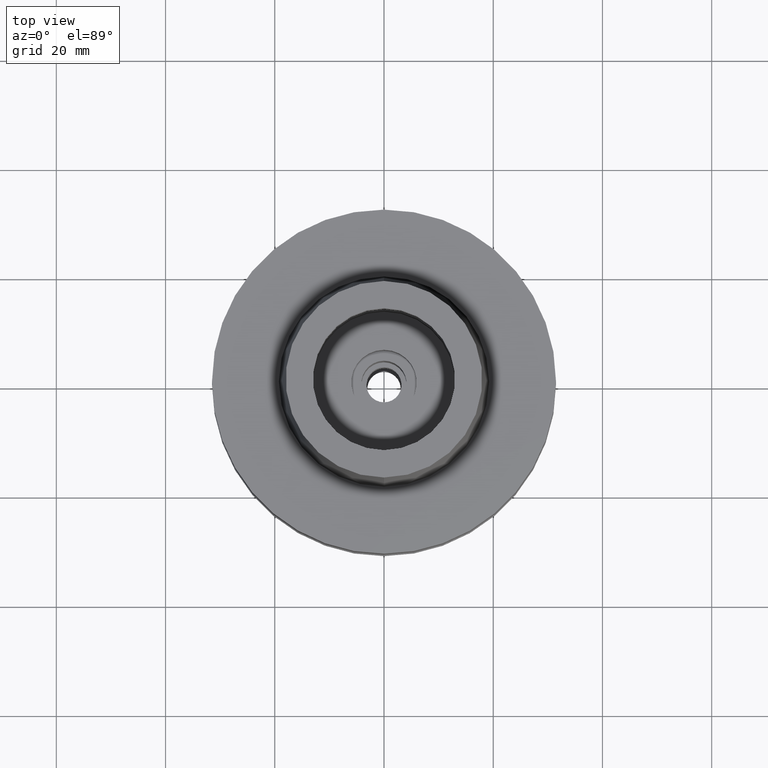
[diagram: clean part render]
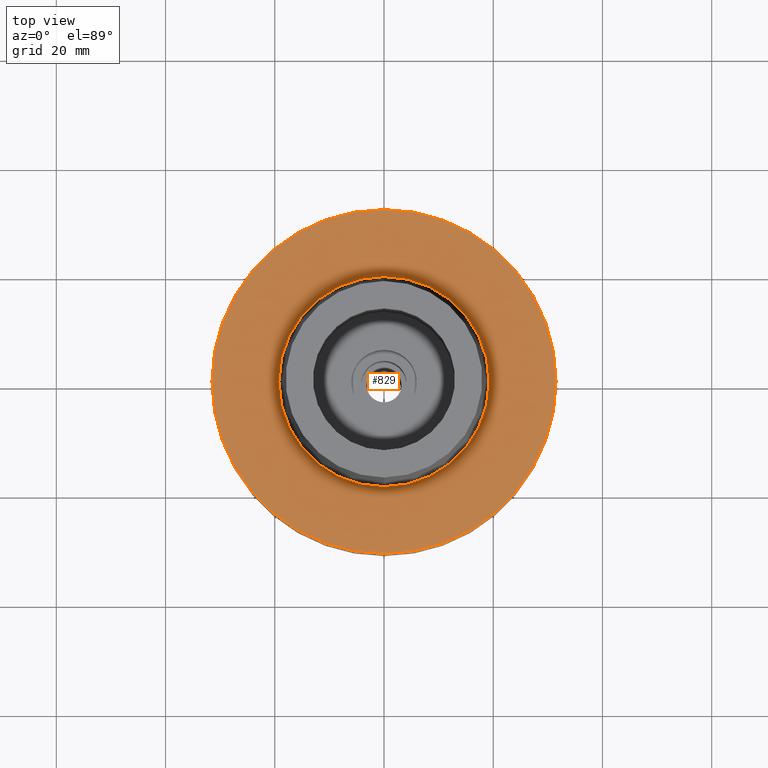
[diagram: same view with one face highlighted and labeled with its STEP entity id]
A machine part, top view. The second image highlights one B-rep face of the part: STEP entity #829.
In plain terms, the highlighted planar face has unit normal (0, 0, 1).
Its self-contained STEP definition (entity closure, byte-faithful):
#40 = DIRECTION ( 'NONE',  ( 0.0000000000000000000, -1.000000000000000000, 0.0000000000000000000 ) ) ;
#241 = AXIS2_PLACEMENT_3D ( 'NONE', #1822, #973, #2050 ) ;
#251 = CARTESIAN_POINT ( 'NONE',  ( 0.0000000000000000000, 0.0000000000000000000, 1.705302565823999875E-13 ) ) ;
#288 = VERTEX_POINT ( 'NONE', #2385 ) ;
#317 = EDGE_CURVE ( 'NONE', #1976, #2005, #1858, .T. ) ;
#359 = DIRECTION ( 'NONE',  ( 0.0000000000000000000, 0.0000000000000000000, 1.000000000000000000 ) ) ;
#449 = FACE_BOUND ( 'NONE', #1372, .T. ) ;
#647 = EDGE_CURVE ( 'NONE', #288, #2098, #1209, .T. ) ;
#690 = AXIS2_PLACEMENT_3D ( 'NONE', #1344, #941, #1329 ) ;
#783 = CARTESIAN_POINT ( 'NONE',  ( 0.0000000000000000000, -31.50000000000000000, 1.705302565823999875E-13 ) ) ;
#829 = ADVANCED_FACE ( 'NONE', ( #2222, #449 ), #1540, .T. ) ;
#868 = CARTESIAN_POINT ( 'NONE',  ( 0.0000000000000000000, -19.24999954280000125, 3.410605131648000255E-13 ) ) ;
#917 = EDGE_CURVE ( 'NONE', #2098, #288, #1821, .T. ) ;
#941 = DIRECTION ( 'NONE',  ( 0.0000000000000000000, 0.0000000000000000000, 1.000000000000000000 ) ) ;
#973 = DIRECTION ( 'NONE',  ( 0.0000000000000000000, 0.0000000000000000000, -1.000000000000000000 ) ) ;
#1019 = CARTESIAN_POINT ( 'NONE',  ( 0.0000000000000000000, 0.0000000000000000000, 5.115907697473000027E-13 ) ) ;
#1035 = DIRECTION ( 'NONE',  ( 0.0000000000000000000, 1.000000000000000000, 0.0000000000000000000 ) ) ;
#1197 = ORIENTED_EDGE ( 'NONE', *, *, #647, .F. ) ;
#1209 = CIRCLE ( 'NONE', #241, 31.50000000000000000 ) ;
#1290 = CARTESIAN_POINT ( 'NONE',  ( 0.0000000000000000000, 0.0000000000000000000, 5.115907697473000027E-13 ) ) ;
#1329 = DIRECTION ( 'NONE',  ( 1.000000000000000000, 0.0000000000000000000, 0.0000000000000000000 ) ) ;
#1344 = CARTESIAN_POINT ( 'NONE',  ( 0.0000000000000000000, 0.0000000000000000000, 0.0000000000000000000 ) ) ;
#1372 = EDGE_LOOP ( 'NONE', ( #1906, #1755 ) ) ;
#1504 = EDGE_CURVE ( 'NONE', #2005, #1976, #2230, .T. ) ;
#1540 = PLANE ( 'NONE',  #690 ) ;
#1755 = ORIENTED_EDGE ( 'NONE', *, *, #1504, .F. ) ;
#1782 = AXIS2_PLACEMENT_3D ( 'NONE', #1019, #359, #2485 ) ;
#1821 = CIRCLE ( 'NONE', #2360, 31.50000000000000000 ) ;
#1822 = CARTESIAN_POINT ( 'NONE',  ( 0.0000000000000000000, 0.0000000000000000000, 1.705302565823999875E-13 ) ) ;
#1858 = CIRCLE ( 'NONE', #2611, 19.24999954280000125 ) ;
#1906 = ORIENTED_EDGE ( 'NONE', *, *, #317, .F. ) ;
#1976 = VERTEX_POINT ( 'NONE', #2325 ) ;
#2005 = VERTEX_POINT ( 'NONE', #868 ) ;
#2050 = DIRECTION ( 'NONE',  ( 0.0000000000000000000, 1.000000000000000000, 0.0000000000000000000 ) ) ;
#2098 = VERTEX_POINT ( 'NONE', #783 ) ;
#2118 = DIRECTION ( 'NONE',  ( 0.0000000000000000000, 0.0000000000000000000, 1.000000000000000000 ) ) ;
#2222 = FACE_OUTER_BOUND ( 'NONE', #2545, .T. ) ;
#2230 = CIRCLE ( 'NONE', #1782, 19.24999954280000125 ) ;
#2325 = CARTESIAN_POINT ( 'NONE',  ( 0.0000000000000000000, 19.24999954280000125, 3.410605131648000255E-13 ) ) ;
#2360 = AXIS2_PLACEMENT_3D ( 'NONE', #251, #2603, #40 ) ;
#2385 = CARTESIAN_POINT ( 'NONE',  ( 0.0000000000000000000, 31.50000000000000000, 1.705302565823999875E-13 ) ) ;
#2485 = DIRECTION ( 'NONE',  ( 0.0000000000000000000, -1.000000000000000000, 0.0000000000000000000 ) ) ;
#2545 = EDGE_LOOP ( 'NONE', ( #1197, #2630 ) ) ;
#2603 = DIRECTION ( 'NONE',  ( 0.0000000000000000000, 0.0000000000000000000, -1.000000000000000000 ) ) ;
#2611 = AXIS2_PLACEMENT_3D ( 'NONE', #1290, #2118, #1035 ) ;
#2630 = ORIENTED_EDGE ( 'NONE', *, *, #917, .F. ) ;